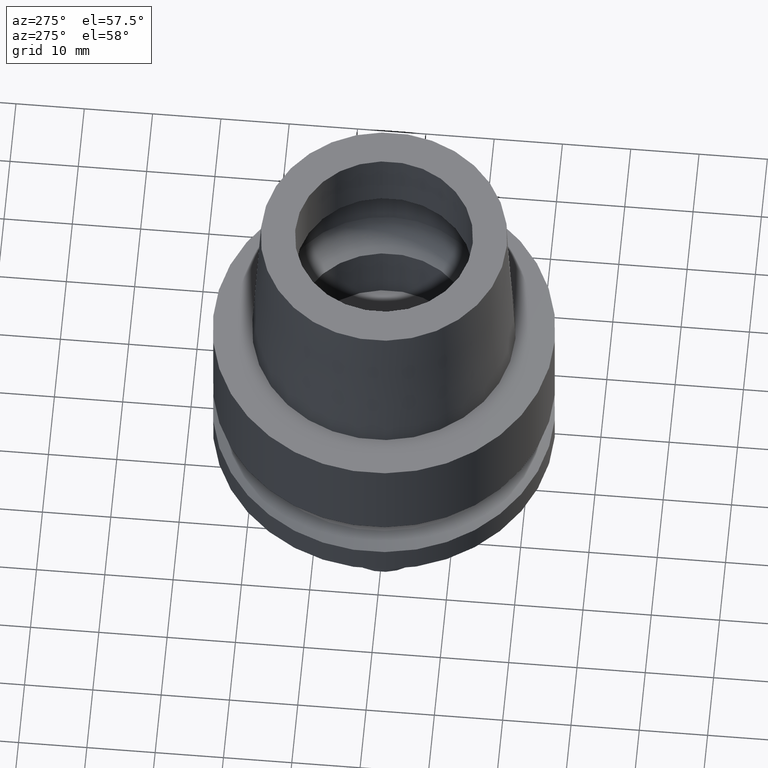
[diagram: clean part render]
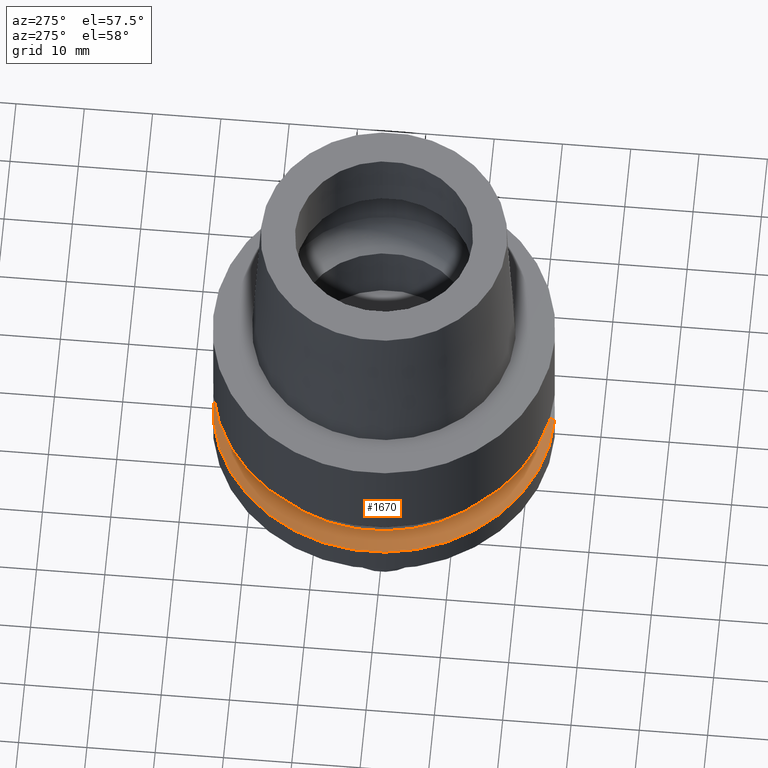
[diagram: same view with one face highlighted and labeled with its STEP entity id]
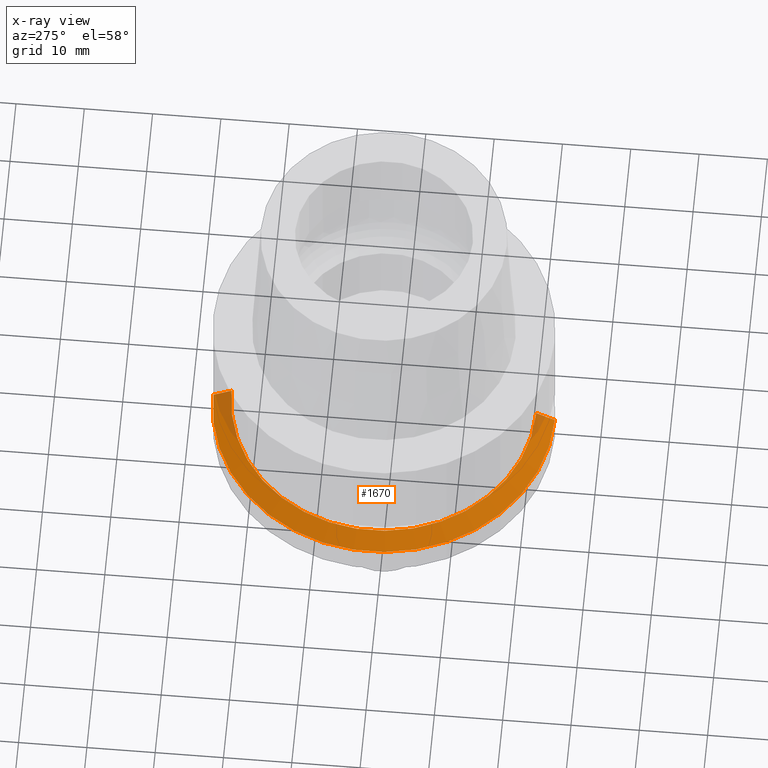
[diagram: x-ray of the same camera — body ghosted, the highlighted face saturated]
A machine part, auxiliary view. The second image highlights one B-rep face of the part: STEP entity #1670.
The next image is the same camera in x-ray: the body ghosted, the highlighted face saturated — about 7% of this face is hidden behind the body in this view.
In plain terms, the highlighted conical surface has half-angle 60.97 deg.
Its self-contained STEP definition (entity closure, byte-faithful):
#111 = VECTOR ( 'NONE', #1871, 1000.000000000000114 ) ;
#115 = DIRECTION ( 'NONE',  ( 0.0000000000000000000, 0.0000000000000000000, -1.000000000000000000 ) ) ;
#272 = DIRECTION ( 'NONE',  ( 0.0000000000000000000, 0.0000000000000000000, -1.000000000000000000 ) ) ;
#303 = CARTESIAN_POINT ( 'NONE',  ( 0.0000000000000000000, 0.0000000000000000000, -21.38164558085999900 ) ) ;
#444 = CARTESIAN_POINT ( 'NONE',  ( 0.0000000000000000000, 22.28529260494000042, -19.87500000000000000 ) ) ;
#471 = DIRECTION ( 'NONE',  ( 0.0000000000000000000, -1.000000000000000000, 0.0000000000000000000 ) ) ;
#476 = EDGE_CURVE ( 'NONE', #1981, #2665, #2186, .T. ) ;
#591 = ORIENTED_EDGE ( 'NONE', *, *, #1382, .F. ) ;
#619 = LINE ( 'NONE', #2080, #111 ) ;
#653 = CONICAL_SURFACE ( 'NONE', #1581, 23.64264630247000198, 1.064127244940741290 ) ;
#742 = DIRECTION ( 'NONE',  ( 0.0000000000000000000, -1.000000000000000000, 0.0000000000000000000 ) ) ;
#764 = CARTESIAN_POINT ( 'NONE',  ( 0.0000000000000000000, 25.00000000000000000, -21.38164558085999900 ) ) ;
#897 = VERTEX_POINT ( 'NONE', #764 ) ;
#914 = CARTESIAN_POINT ( 'NONE',  ( 0.0000000000000000000, 0.0000000000000000000, -19.87500000000000000 ) ) ;
#1095 = CARTESIAN_POINT ( 'NONE',  ( 0.0000000000000000000, -22.28529260494000042, -19.87500000000000000 ) ) ;
#1164 = ORIENTED_EDGE ( 'NONE', *, *, #476, .T. ) ;
#1167 = VERTEX_POINT ( 'NONE', #2694 ) ;
#1382 = EDGE_CURVE ( 'NONE', #1981, #1167, #1482, .T. ) ;
#1419 = CARTESIAN_POINT ( 'NONE',  ( 0.0000000000000000000, 0.0000000000000000000, -20.62832279043000128 ) ) ;
#1420 = ORIENTED_EDGE ( 'NONE', *, *, #1647, .F. ) ;
#1482 = LINE ( 'NONE', #2517, #2405 ) ;
#1494 = ORIENTED_EDGE ( 'NONE', *, *, #2603, .T. ) ;
#1536 = AXIS2_PLACEMENT_3D ( 'NONE', #914, #272, #471 ) ;
#1581 = AXIS2_PLACEMENT_3D ( 'NONE', #1419, #1799, #742 ) ;
#1647 = EDGE_CURVE ( 'NONE', #1167, #897, #1848, .T. ) ;
#1665 = AXIS2_PLACEMENT_3D ( 'NONE', #303, #115, #1786 ) ;
#1670 = ADVANCED_FACE ( 'NONE', ( #2226 ), #653, .T. ) ;
#1786 = DIRECTION ( 'NONE',  ( 0.0000000000000000000, -1.000000000000000000, 0.0000000000000000000 ) ) ;
#1799 = DIRECTION ( 'NONE',  ( 0.0000000000000000000, 0.0000000000000000000, -1.000000000000000000 ) ) ;
#1848 = CIRCLE ( 'NONE', #1665, 25.00000000000000000 ) ;
#1871 = DIRECTION ( 'NONE',  ( 0.0000000000000000000, 0.8743657415364817220, -0.4852675035764898448 ) ) ;
#1892 = DIRECTION ( 'NONE',  ( 0.0000000000000000000, -0.8743657415364817220, -0.4852675035764898448 ) ) ;
#1981 = VERTEX_POINT ( 'NONE', #1095 ) ;
#2080 = CARTESIAN_POINT ( 'NONE',  ( 0.0000000000000000000, 22.28529260494000042, -19.87500000000000000 ) ) ;
#2181 = EDGE_LOOP ( 'NONE', ( #1420, #591, #1164, #1494 ) ) ;
#2186 = CIRCLE ( 'NONE', #1536, 22.28529260494000042 ) ;
#2226 = FACE_OUTER_BOUND ( 'NONE', #2181, .T. ) ;
#2405 = VECTOR ( 'NONE', #1892, 1000.000000000000114 ) ;
#2517 = CARTESIAN_POINT ( 'NONE',  ( 0.0000000000000000000, -22.28529260494000042, -19.87500000000000000 ) ) ;
#2603 = EDGE_CURVE ( 'NONE', #2665, #897, #619, .T. ) ;
#2665 = VERTEX_POINT ( 'NONE', #444 ) ;
#2694 = CARTESIAN_POINT ( 'NONE',  ( 0.0000000000000000000, -25.00000000000000000, -21.38164558085999900 ) ) ;